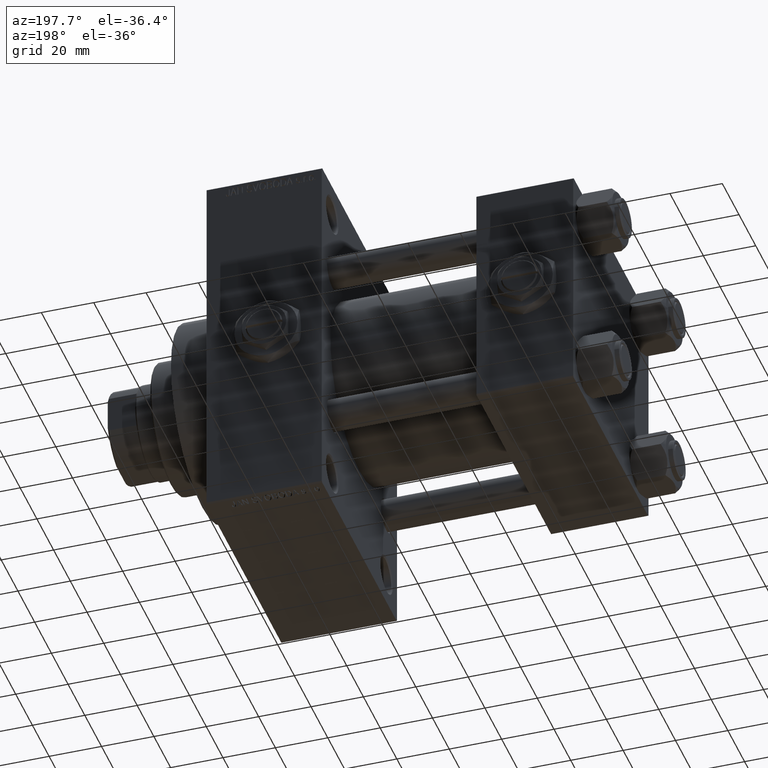
[diagram: clean part render]
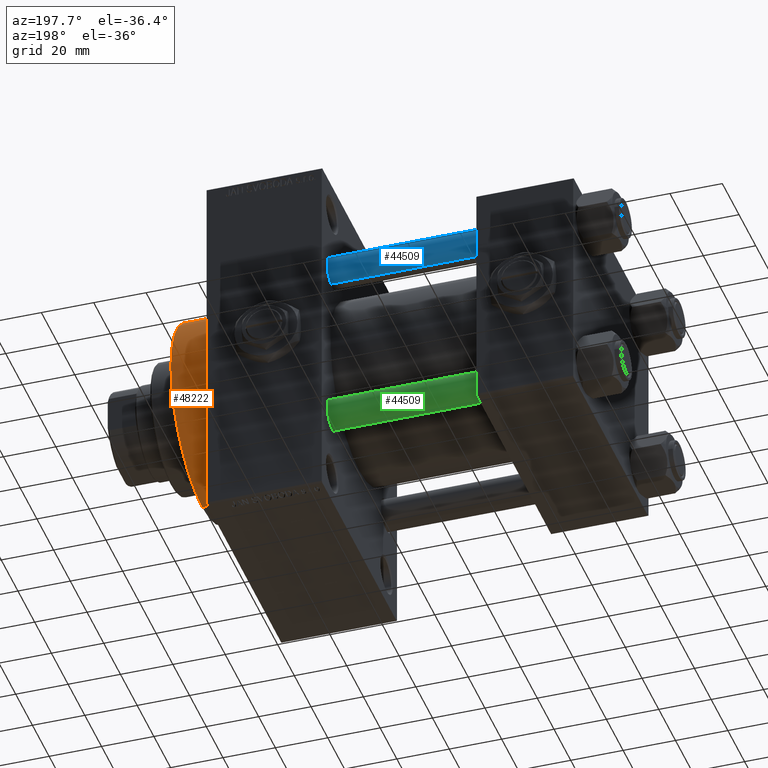
[diagram: same view with three faces highlighted in distinct colors, each labeled with its STEP entity id]
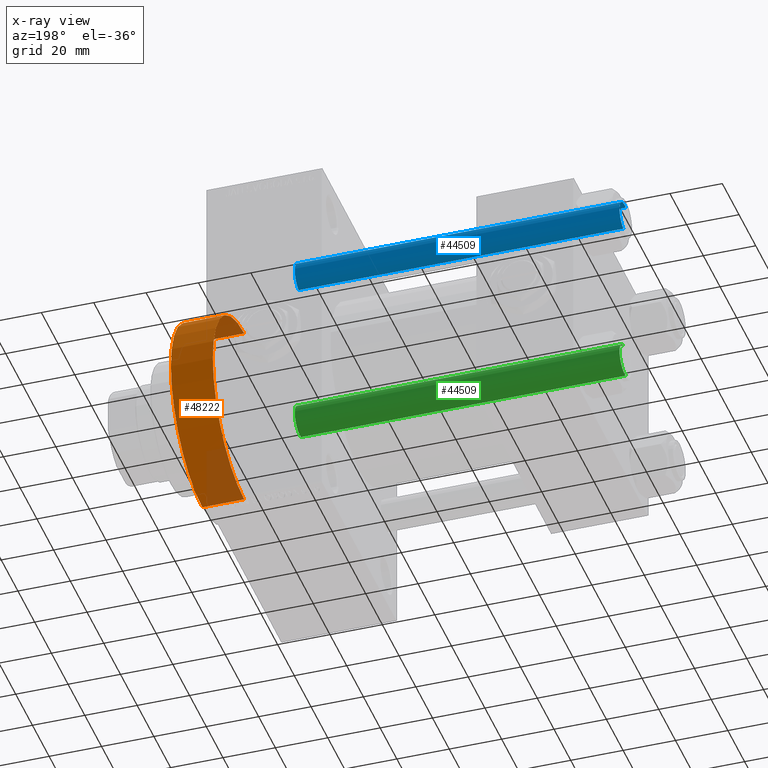
[diagram: x-ray of the same camera — body ghosted, the three highlighted faces saturated]
A machine part, auxiliary view with three faces highlighted in distinct colors.
The next image is the same camera in x-ray (body ghosted, the three faces saturated) — at least one of them is partly hidden behind the body in this view.
Their STEP definitions:

[orange] entity #48222 — the highlighted cylindrical surface (partial cylindrical patch) has radius 37.5 mm, axis along (-1, -0, -0).
#866 = ORIENTED_EDGE ( 'NONE', *, *, #21723, .F. ) ;
#1042 = CARTESIAN_POINT ( 'NONE',  ( 156.0000000000000284, 0.000000000000000000, 0.000000000000000000 ) ) ;
#1555 = EDGE_LOOP ( 'NONE', ( #866, #22784, #19801, #14573 ) ) ;
#2114 = VERTEX_POINT ( 'NONE', #44841 ) ;
#2160 = CARTESIAN_POINT ( 'NONE',  ( 156.0000000000000284, 4.592425496802575156E-15, -37.50000000000000711 ) ) ;
#4337 = FACE_OUTER_BOUND ( 'NONE', #1555, .T. ) ;
#8039 = DIRECTION ( 'NONE',  ( 0.000000000000000000, 0.000000000000000000, -1.000000000000000000 ) ) ;
#9394 = VECTOR ( 'NONE', #28833, 1000.000000000000000 ) ;
#10691 = AXIS2_PLACEMENT_3D ( 'NONE', #12059, #38991, #43211 ) ;
#11205 = VECTOR ( 'NONE', #26908, 1000.000000000000000 ) ;
#12059 = CARTESIAN_POINT ( 'NONE',  ( 156.0000000000000284, 0.000000000000000000, 0.000000000000000000 ) ) ;
#12385 = CARTESIAN_POINT ( 'NONE',  ( 140.0000000000000000, 0.000000000000000000, 0.000000000000000000 ) ) ;
#14573 = ORIENTED_EDGE ( 'NONE', *, *, #30562, .F. ) ;
#16704 = EDGE_CURVE ( 'NONE', #48630, #2114, #48954, .T. ) ;
#18880 = VERTEX_POINT ( 'NONE', #28409 ) ;
#19801 = ORIENTED_EDGE ( 'NONE', *, *, #16704, .T. ) ;
#21109 = LINE ( 'NONE', #25571, #9394 ) ;
#21118 = AXIS2_PLACEMENT_3D ( 'NONE', #12385, #27833, #46789 ) ;
#21723 = EDGE_CURVE ( 'NONE', #43877, #18880, #29141, .T. ) ;
#22784 = ORIENTED_EDGE ( 'NONE', *, *, #37259, .T. ) ;
#25435 = CARTESIAN_POINT ( 'NONE',  ( 140.0000000000000000, 4.592425496802575156E-15, -37.50000000000000711 ) ) ;
#25571 = CARTESIAN_POINT ( 'NONE',  ( 156.0000000000000284, 0.000000000000000000, 37.50000000000000711 ) ) ;
#26908 = DIRECTION ( 'NONE',  ( -1.000000000000000000, -0.000000000000000000, -0.000000000000000000 ) ) ;
#27149 = CARTESIAN_POINT ( 'NONE',  ( 156.0000000000000284, 4.592425496802575156E-15, -37.50000000000000711 ) ) ;
#27833 = DIRECTION ( 'NONE',  ( 1.000000000000000000, 0.000000000000000000, 0.000000000000000000 ) ) ;
#28409 = CARTESIAN_POINT ( 'NONE',  ( 156.0000000000000284, 0.000000000000000000, 37.50000000000000711 ) ) ;
#28833 = DIRECTION ( 'NONE',  ( -1.000000000000000000, -0.000000000000000000, -0.000000000000000000 ) ) ;
#29141 = CIRCLE ( 'NONE', #45867, 37.50000000000000711 ) ;
#30562 = EDGE_CURVE ( 'NONE', #18880, #2114, #21109, .T. ) ;
#37259 = EDGE_CURVE ( 'NONE', #43877, #48630, #46343, .T. ) ;
#38991 = DIRECTION ( 'NONE',  ( -1.000000000000000000, -0.000000000000000000, -0.000000000000000000 ) ) ;
#42182 = DIRECTION ( 'NONE',  ( 1.000000000000000000, 0.000000000000000000, 0.000000000000000000 ) ) ;
#43211 = DIRECTION ( 'NONE',  ( 0.000000000000000000, 0.000000000000000000, 1.000000000000000000 ) ) ;
#43877 = VERTEX_POINT ( 'NONE', #2160 ) ;
#44841 = CARTESIAN_POINT ( 'NONE',  ( 140.0000000000000000, 0.000000000000000000, 37.50000000000000711 ) ) ;
#45867 = AXIS2_PLACEMENT_3D ( 'NONE', #1042, #42182, #8039 ) ;
#46210 = CYLINDRICAL_SURFACE ( 'NONE', #10691, 37.50000000000000711 ) ;
#46343 = LINE ( 'NONE', #27149, #11205 ) ;
#46789 = DIRECTION ( 'NONE',  ( 0.000000000000000000, 0.000000000000000000, -1.000000000000000000 ) ) ;
#48222 = ADVANCED_FACE ( 'NONE', ( #4337 ), #46210, .T. ) ;
#48630 = VERTEX_POINT ( 'NONE', #25435 ) ;
#48954 = CIRCLE ( 'NONE', #21118, 37.50000000000000711 ) ;

[blue] entity #44509 — the highlighted cylindrical surface (edge-blend (fillet) strip) has radius 6 mm, axis along (-1, -0, 0).
#3931 = CARTESIAN_POINT ( 'NONE',  ( 6.000000000000000888, 7.347880794884120722E-16, 124.5000000000000000 ) ) ;
#4386 = EDGE_CURVE ( 'NONE', #21021, #12865, #30362, .T. ) ;
#4839 = EDGE_LOOP ( 'NONE', ( #18498, #16714, #30018, #33143 ) ) ;
#5209 = DIRECTION ( 'NONE',  ( 1.000000000000000000, 0.000000000000000000, 0.000000000000000000 ) ) ;
#5277 = EDGE_CURVE ( 'NONE', #36924, #31730, #13564, .T. ) ;
#6239 = CYLINDRICAL_SURFACE ( 'NONE', #8173, 6.000000000000000888 ) ;
#6639 = LINE ( 'NONE', #33982, #28122 ) ;
#7732 = CARTESIAN_POINT ( 'NONE',  ( 6.000000000000000888, 7.347880794884120722E-16, 125.0000000000000000 ) ) ;
#8173 = AXIS2_PLACEMENT_3D ( 'NONE', #39895, #28435, #25425 ) ;
#8895 = VECTOR ( 'NONE', #26177, 1000.000000000000000 ) ;
#9674 = DIRECTION ( 'NONE',  ( 1.000000000000000000, 0.000000000000000000, 0.000000000000000000 ) ) ;
#11718 = EDGE_CURVE ( 'NONE', #36924, #12865, #6639, .T. ) ;
#12865 = VERTEX_POINT ( 'NONE', #48451 ) ;
#13224 = FACE_OUTER_BOUND ( 'NONE', #4839, .T. ) ;
#13564 = CIRCLE ( 'NONE', #39943, 6.000000000000000888 ) ;
#13909 = CARTESIAN_POINT ( 'NONE',  ( 0.000000000000000000, 0.000000000000000000, 124.5000000000000000 ) ) ;
#16714 = ORIENTED_EDGE ( 'NONE', *, *, #42715, .T. ) ;
#18498 = ORIENTED_EDGE ( 'NONE', *, *, #5277, .T. ) ;
#19242 = AXIS2_PLACEMENT_3D ( 'NONE', #30899, #31385, #5209 ) ;
#21021 = VERTEX_POINT ( 'NONE', #28454 ) ;
#25425 = DIRECTION ( 'NONE',  ( -1.000000000000000000, 0.000000000000000000, 0.000000000000000000 ) ) ;
#26177 = DIRECTION ( 'NONE',  ( -0.000000000000000000, -0.000000000000000000, -1.000000000000000000 ) ) ;
#26672 = LINE ( 'NONE', #7732, #8895 ) ;
#28122 = VECTOR ( 'NONE', #42192, 1000.000000000000000 ) ;
#28435 = DIRECTION ( 'NONE',  ( -0.000000000000000000, -0.000000000000000000, -1.000000000000000000 ) ) ;
#28454 = CARTESIAN_POINT ( 'NONE',  ( 6.000000000000000888, 7.347880794884120722E-16, 0.4999999999999865663 ) ) ;
#29055 = CARTESIAN_POINT ( 'NONE',  ( -6.000000000000000888, 0.000000000000000000, 124.5000000000000000 ) ) ;
#29122 = DIRECTION ( 'NONE',  ( 0.000000000000000000, 0.000000000000000000, -1.000000000000000000 ) ) ;
#30018 = ORIENTED_EDGE ( 'NONE', *, *, #4386, .T. ) ;
#30362 = CIRCLE ( 'NONE', #19242, 6.000000000000000888 ) ;
#30899 = CARTESIAN_POINT ( 'NONE',  ( 0.000000000000000000, 0.000000000000000000, 0.4999999999999865663 ) ) ;
#31385 = DIRECTION ( 'NONE',  ( -0.000000000000000000, -0.000000000000000000, 1.000000000000000000 ) ) ;
#31730 = VERTEX_POINT ( 'NONE', #3931 ) ;
#33143 = ORIENTED_EDGE ( 'NONE', *, *, #11718, .F. ) ;
#33982 = CARTESIAN_POINT ( 'NONE',  ( -6.000000000000000888, 0.000000000000000000, 125.0000000000000000 ) ) ;
#36924 = VERTEX_POINT ( 'NONE', #29055 ) ;
#39895 = CARTESIAN_POINT ( 'NONE',  ( 0.000000000000000000, 0.000000000000000000, 125.0000000000000000 ) ) ;
#39943 = AXIS2_PLACEMENT_3D ( 'NONE', #13909, #29122, #9674 ) ;
#42192 = DIRECTION ( 'NONE',  ( -0.000000000000000000, -0.000000000000000000, -1.000000000000000000 ) ) ;
#42715 = EDGE_CURVE ( 'NONE', #31730, #21021, #26672, .T. ) ;
#44509 = ADVANCED_FACE ( 'NONE', ( #13224 ), #6239, .T. ) ;
#48451 = CARTESIAN_POINT ( 'NONE',  ( -6.000000000000000888, 0.000000000000000000, 0.4999999999999865663 ) ) ;

[green] entity #44509 — the highlighted cylindrical surface (edge-blend (fillet) strip) has radius 6 mm, axis along (1, -0, 0).
#3931 = CARTESIAN_POINT ( 'NONE',  ( 6.000000000000000888, 7.347880794884120722E-16, 124.5000000000000000 ) ) ;
#4386 = EDGE_CURVE ( 'NONE', #21021, #12865, #30362, .T. ) ;
#4839 = EDGE_LOOP ( 'NONE', ( #18498, #16714, #30018, #33143 ) ) ;
#5209 = DIRECTION ( 'NONE',  ( 1.000000000000000000, 0.000000000000000000, 0.000000000000000000 ) ) ;
#5277 = EDGE_CURVE ( 'NONE', #36924, #31730, #13564, .T. ) ;
#6239 = CYLINDRICAL_SURFACE ( 'NONE', #8173, 6.000000000000000888 ) ;
#6639 = LINE ( 'NONE', #33982, #28122 ) ;
#7732 = CARTESIAN_POINT ( 'NONE',  ( 6.000000000000000888, 7.347880794884120722E-16, 125.0000000000000000 ) ) ;
#8173 = AXIS2_PLACEMENT_3D ( 'NONE', #39895, #28435, #25425 ) ;
#8895 = VECTOR ( 'NONE', #26177, 1000.000000000000000 ) ;
#9674 = DIRECTION ( 'NONE',  ( 1.000000000000000000, 0.000000000000000000, 0.000000000000000000 ) ) ;
#11718 = EDGE_CURVE ( 'NONE', #36924, #12865, #6639, .T. ) ;
#12865 = VERTEX_POINT ( 'NONE', #48451 ) ;
#13224 = FACE_OUTER_BOUND ( 'NONE', #4839, .T. ) ;
#13564 = CIRCLE ( 'NONE', #39943, 6.000000000000000888 ) ;
#13909 = CARTESIAN_POINT ( 'NONE',  ( 0.000000000000000000, 0.000000000000000000, 124.5000000000000000 ) ) ;
#16714 = ORIENTED_EDGE ( 'NONE', *, *, #42715, .T. ) ;
#18498 = ORIENTED_EDGE ( 'NONE', *, *, #5277, .T. ) ;
#19242 = AXIS2_PLACEMENT_3D ( 'NONE', #30899, #31385, #5209 ) ;
#21021 = VERTEX_POINT ( 'NONE', #28454 ) ;
#25425 = DIRECTION ( 'NONE',  ( -1.000000000000000000, 0.000000000000000000, 0.000000000000000000 ) ) ;
#26177 = DIRECTION ( 'NONE',  ( -0.000000000000000000, -0.000000000000000000, -1.000000000000000000 ) ) ;
#26672 = LINE ( 'NONE', #7732, #8895 ) ;
#28122 = VECTOR ( 'NONE', #42192, 1000.000000000000000 ) ;
#28435 = DIRECTION ( 'NONE',  ( -0.000000000000000000, -0.000000000000000000, -1.000000000000000000 ) ) ;
#28454 = CARTESIAN_POINT ( 'NONE',  ( 6.000000000000000888, 7.347880794884120722E-16, 0.4999999999999865663 ) ) ;
#29055 = CARTESIAN_POINT ( 'NONE',  ( -6.000000000000000888, 0.000000000000000000, 124.5000000000000000 ) ) ;
#29122 = DIRECTION ( 'NONE',  ( 0.000000000000000000, 0.000000000000000000, -1.000000000000000000 ) ) ;
#30018 = ORIENTED_EDGE ( 'NONE', *, *, #4386, .T. ) ;
#30362 = CIRCLE ( 'NONE', #19242, 6.000000000000000888 ) ;
#30899 = CARTESIAN_POINT ( 'NONE',  ( 0.000000000000000000, 0.000000000000000000, 0.4999999999999865663 ) ) ;
#31385 = DIRECTION ( 'NONE',  ( -0.000000000000000000, -0.000000000000000000, 1.000000000000000000 ) ) ;
#31730 = VERTEX_POINT ( 'NONE', #3931 ) ;
#33143 = ORIENTED_EDGE ( 'NONE', *, *, #11718, .F. ) ;
#33982 = CARTESIAN_POINT ( 'NONE',  ( -6.000000000000000888, 0.000000000000000000, 125.0000000000000000 ) ) ;
#36924 = VERTEX_POINT ( 'NONE', #29055 ) ;
#39895 = CARTESIAN_POINT ( 'NONE',  ( 0.000000000000000000, 0.000000000000000000, 125.0000000000000000 ) ) ;
#39943 = AXIS2_PLACEMENT_3D ( 'NONE', #13909, #29122, #9674 ) ;
#42192 = DIRECTION ( 'NONE',  ( -0.000000000000000000, -0.000000000000000000, -1.000000000000000000 ) ) ;
#42715 = EDGE_CURVE ( 'NONE', #31730, #21021, #26672, .T. ) ;
#44509 = ADVANCED_FACE ( 'NONE', ( #13224 ), #6239, .T. ) ;
#48451 = CARTESIAN_POINT ( 'NONE',  ( -6.000000000000000888, 0.000000000000000000, 0.4999999999999865663 ) ) ;